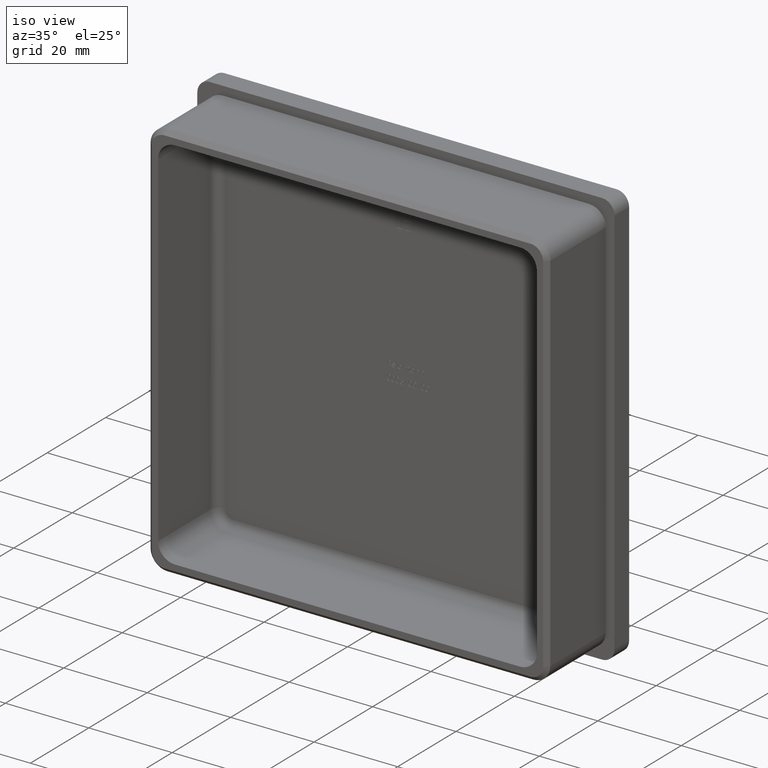
[diagram: clean part render]
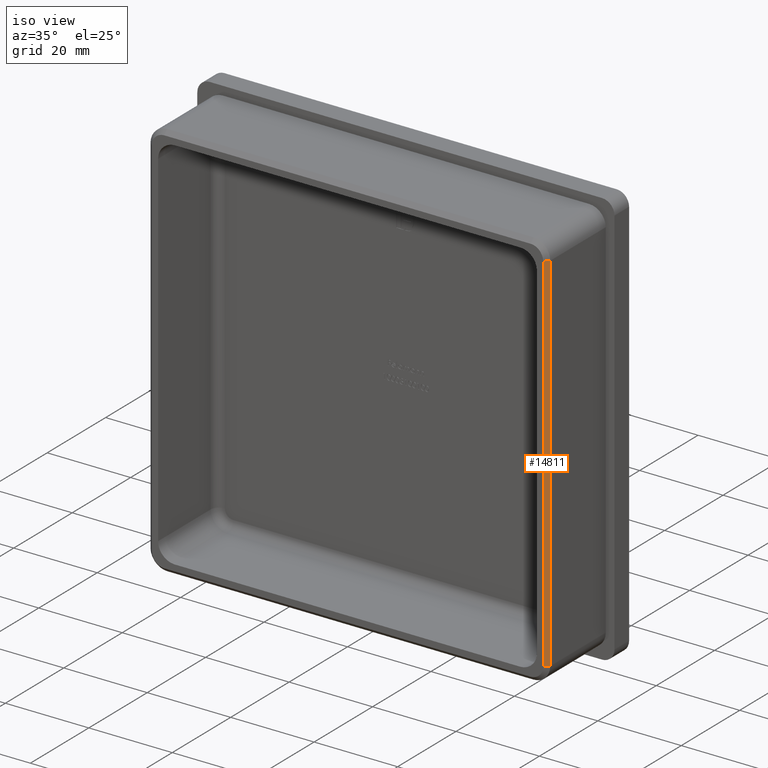
[diagram: same view with one face highlighted and labeled with its STEP entity id]
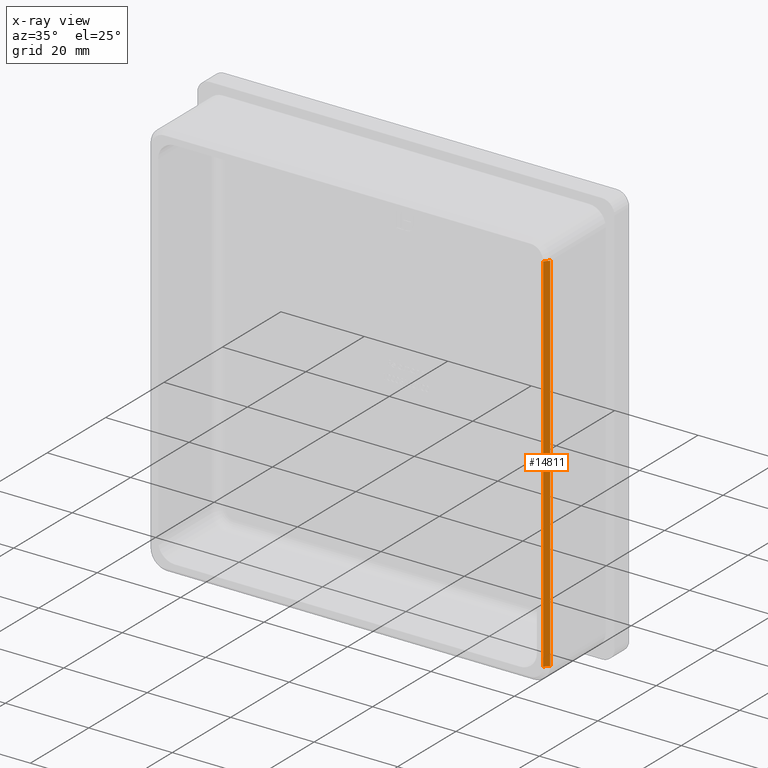
[diagram: x-ray of the same camera — body ghosted, the highlighted face saturated]
A machine part, iso view. The second image highlights one B-rep face of the part: STEP entity #14811.
The next image is the same camera in x-ray: the body ghosted, the highlighted face saturated — about 0% of this face is hidden behind the body in this view.
In plain terms, the highlighted planar face has unit normal (0.7071, -0.7071, 0).
Its self-contained STEP definition (entity closure, byte-faithful):
#661 = EDGE_CURVE ( 'NONE', #15323, #4130, #7168, .T. ) ;
#1946 = VECTOR ( 'NONE', #12361, 1000.000000000000114 ) ;
#2632 = VERTEX_POINT ( 'NONE', #3455 ) ;
#2976 = ORIENTED_EDGE ( 'NONE', *, *, #10044, .F. ) ;
#3163 = VERTEX_POINT ( 'NONE', #7755 ) ;
#3379 = AXIS2_PLACEMENT_3D ( 'NONE', #15591, #11433, #7227 ) ;
#3455 = CARTESIAN_POINT ( 'NONE',  ( 47.90000000000001279, -18.99999999999998579, -43.90000000000001279 ) ) ;
#3697 = LINE ( 'NONE', #16838, #1946 ) ;
#4130 = VERTEX_POINT ( 'NONE', #7500 ) ;
#4962 = VECTOR ( 'NONE', #8448, 999.9999999999998863 ) ;
#5813 = PLANE ( 'NONE',  #3379 ) ;
#5841 = LINE ( 'NONE', #18059, #9334 ) ;
#6378 = ORIENTED_EDGE ( 'NONE', *, *, #14230, .T. ) ;
#6945 = CARTESIAN_POINT ( 'NONE',  ( 47.90000000000001279, -18.99999999999998579, 43.89999999999999858 ) ) ;
#7168 = LINE ( 'NONE', #15715, #4962 ) ;
#7227 = DIRECTION ( 'NONE',  ( 0.000000000000000000, 0.000000000000000000, -1.000000000000000000 ) ) ;
#7500 = CARTESIAN_POINT ( 'NONE',  ( 46.90000000000002700, -20.00000000000000000, 43.89999999999999858 ) ) ;
#7755 = CARTESIAN_POINT ( 'NONE',  ( 46.90000000000001990, -20.00000000000000000, -43.90000000000001279 ) ) ;
#8066 = DIRECTION ( 'NONE',  ( 0.000000000000000000, 0.000000000000000000, 1.000000000000000000 ) ) ;
#8448 = DIRECTION ( 'NONE',  ( -0.7071067811865376918, -0.7071067811865574537, 0.000000000000000000 ) ) ;
#8715 = FACE_OUTER_BOUND ( 'NONE', #11972, .T. ) ;
#9334 = VECTOR ( 'NONE', #10950, 1000.000000000000000 ) ;
#10044 = EDGE_CURVE ( 'NONE', #3163, #4130, #11158, .T. ) ;
#10950 = DIRECTION ( 'NONE',  ( 0.000000000000000000, 0.000000000000000000, -1.000000000000000000 ) ) ;
#11158 = LINE ( 'NONE', #16442, #13769 ) ;
#11433 = DIRECTION ( 'NONE',  ( 0.7071067811865574537, -0.7071067811865376918, 0.000000000000000000 ) ) ;
#11972 = EDGE_LOOP ( 'NONE', ( #6378, #17103, #14772, #2976 ) ) ;
#12361 = DIRECTION ( 'NONE',  ( 0.7071067811865402453, 0.7071067811865549002, 0.000000000000000000 ) ) ;
#13769 = VECTOR ( 'NONE', #8066, 1000.000000000000000 ) ;
#14230 = EDGE_CURVE ( 'NONE', #3163, #2632, #3697, .T. ) ;
#14772 = ORIENTED_EDGE ( 'NONE', *, *, #661, .T. ) ;
#14811 = ADVANCED_FACE ( 'NONE', ( #8715 ), #5813, .T. ) ;
#15323 = VERTEX_POINT ( 'NONE', #6945 ) ;
#15591 = CARTESIAN_POINT ( 'NONE',  ( 46.90000000000002700, -20.00000000000000000, 0.000000000000000000 ) ) ;
#15715 = CARTESIAN_POINT ( 'NONE',  ( 47.90000000000001279, -18.99999999999998579, 43.89999999999999858 ) ) ;
#16442 = CARTESIAN_POINT ( 'NONE',  ( 46.90000000000002700, -20.00000000000000000, 43.89999999999999858 ) ) ;
#16723 = EDGE_CURVE ( 'NONE', #15323, #2632, #5841, .T. ) ;
#16838 = CARTESIAN_POINT ( 'NONE',  ( 46.90000000000001990, -20.00000000000000000, -43.90000000000001279 ) ) ;
#17103 = ORIENTED_EDGE ( 'NONE', *, *, #16723, .F. ) ;
#18059 = CARTESIAN_POINT ( 'NONE',  ( 47.90000000000001279, -18.99999999999998579, -43.89999999999998437 ) ) ;